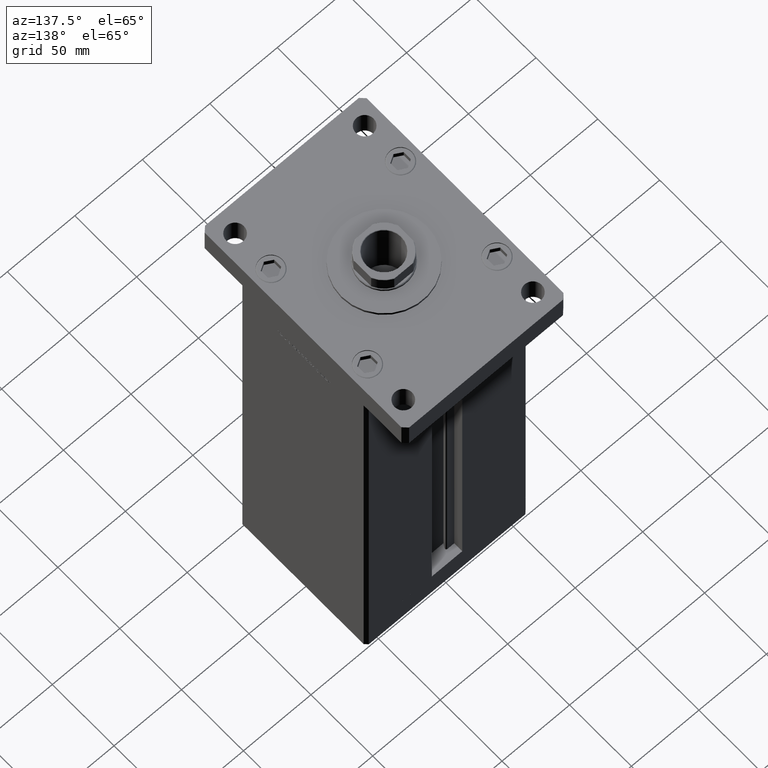
[diagram: clean part render]
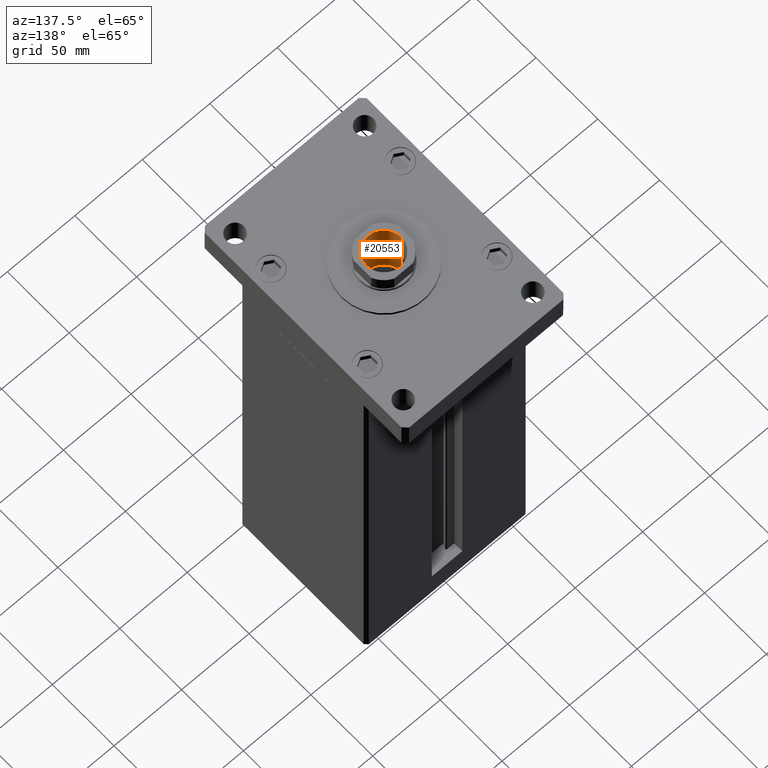
[diagram: same view with one face highlighted and labeled with its STEP entity id]
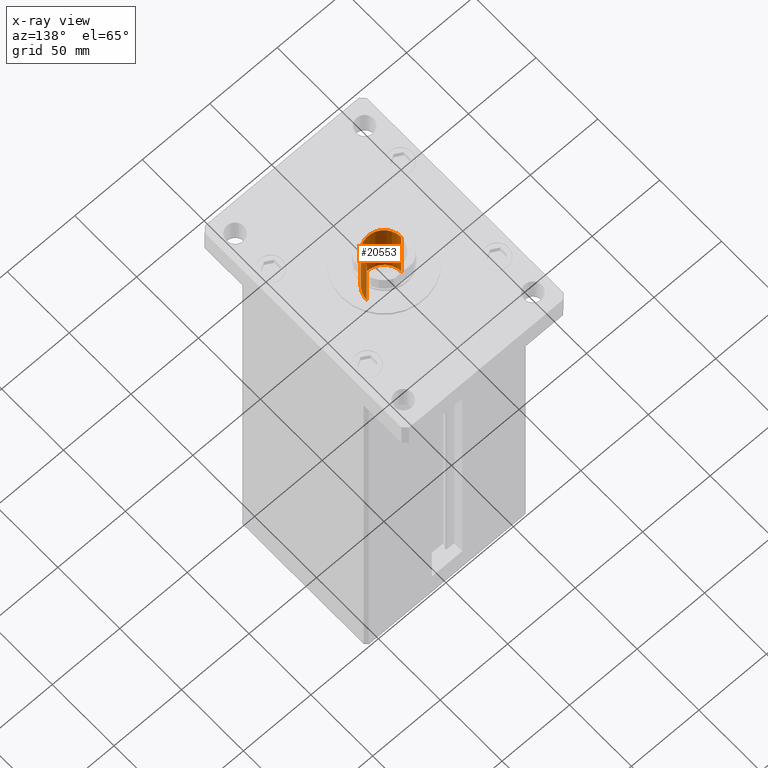
[diagram: x-ray of the same camera — body ghosted, the highlighted face saturated]
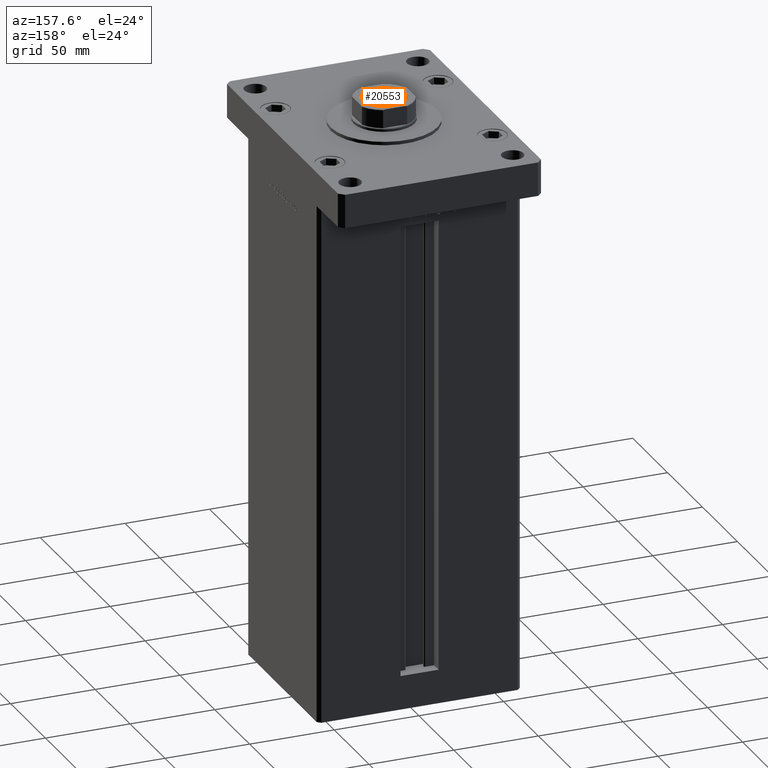
[diagram: same view with one face highlighted and labeled with its STEP entity id]
A machine part, auxiliary view. The second image highlights one B-rep face of the part: STEP entity #20553.
The next image is the same camera in x-ray: the body ghosted, the highlighted face saturated — about 1% of this face is hidden behind the body in this view.
A second angle (auxiliary view) of the same face is appended — the face is thin or edge-on in the first view.
In plain terms, the highlighted cylindrical surface (edge-blend (fillet) strip) has radius 12.75 mm, axis along (0, 0, 1).
Its self-contained STEP definition (entity closure, byte-faithful):
#4655 = CARTESIAN_POINT ( 'NONE',  ( 12.74999999999999467, 0.000000000000000000, 309.2500000000000000 ) ) ;
#5448 = CARTESIAN_POINT ( 'NONE',  ( -12.74999999999999467, 1.561424668912874519E-15, 309.2500000000000000 ) ) ;
#5985 = LINE ( 'NONE', #5448, #52320 ) ;
#7150 = EDGE_CURVE ( 'NONE', #29939, #24408, #29130, .T. ) ;
#7215 = EDGE_CURVE ( 'NONE', #11705, #37923, #5985, .T. ) ;
#7250 = DIRECTION ( 'NONE',  ( 1.000000000000000000, 0.000000000000000000, 0.000000000000000000 ) ) ;
#7376 = CIRCLE ( 'NONE', #37771, 12.74999999999999112 ) ;
#7489 = AXIS2_PLACEMENT_3D ( 'NONE', #34974, #39324, #42340 ) ;
#8436 = CARTESIAN_POINT ( 'NONE',  ( -12.74999999999999467, 1.561424668912874519E-15, 308.9499999999999318 ) ) ;
#11053 = CARTESIAN_POINT ( 'NONE',  ( 0.000000000000000000, 0.000000000000000000, 264.2500000000000568 ) ) ;
#11323 = CARTESIAN_POINT ( 'NONE',  ( 12.74999999999999112, 0.000000000000000000, 264.2500000000000568 ) ) ;
#11642 = EDGE_LOOP ( 'NONE', ( #52927, #48584, #12348, #26995 ) ) ;
#11705 = VERTEX_POINT ( 'NONE', #17397 ) ;
#12348 = ORIENTED_EDGE ( 'NONE', *, *, #17037, .T. ) ;
#14857 = DIRECTION ( 'NONE',  ( 1.000000000000000000, 0.000000000000000000, 0.000000000000000000 ) ) ;
#17037 = EDGE_CURVE ( 'NONE', #37923, #24408, #43872, .T. ) ;
#17397 = CARTESIAN_POINT ( 'NONE',  ( -12.74999999999999112, 1.561424668912874125E-15, 264.2500000000000568 ) ) ;
#20553 = ADVANCED_FACE ( 'NONE', ( #22190 ), #26793, .F. ) ;
#22190 = FACE_OUTER_BOUND ( 'NONE', #11642, .T. ) ;
#24408 = VERTEX_POINT ( 'NONE', #47576 ) ;
#26793 = CYLINDRICAL_SURFACE ( 'NONE', #7489, 12.74999999999999467 ) ;
#26995 = ORIENTED_EDGE ( 'NONE', *, *, #7150, .F. ) ;
#29130 = LINE ( 'NONE', #4655, #42692 ) ;
#29939 = VERTEX_POINT ( 'NONE', #11323 ) ;
#30180 = DIRECTION ( 'NONE',  ( -0.000000000000000000, -0.000000000000000000, 1.000000000000000000 ) ) ;
#33738 = DIRECTION ( 'NONE',  ( -0.000000000000000000, -0.000000000000000000, 1.000000000000000000 ) ) ;
#34974 = CARTESIAN_POINT ( 'NONE',  ( 0.000000000000000000, 0.000000000000000000, 309.2500000000000000 ) ) ;
#37771 = AXIS2_PLACEMENT_3D ( 'NONE', #11053, #44258, #7250 ) ;
#37923 = VERTEX_POINT ( 'NONE', #8436 ) ;
#39324 = DIRECTION ( 'NONE',  ( -0.000000000000000000, -0.000000000000000000, 1.000000000000000000 ) ) ;
#40163 = CARTESIAN_POINT ( 'NONE',  ( 0.000000000000000000, 0.000000000000000000, 308.9499999999999318 ) ) ;
#42340 = DIRECTION ( 'NONE',  ( 1.000000000000000000, 0.000000000000000000, 0.000000000000000000 ) ) ;
#42692 = VECTOR ( 'NONE', #33738, 1000.000000000000000 ) ;
#43872 = CIRCLE ( 'NONE', #50846, 12.74999999999999467 ) ;
#44258 = DIRECTION ( 'NONE',  ( -0.000000000000000000, -0.000000000000000000, 1.000000000000000000 ) ) ;
#47576 = CARTESIAN_POINT ( 'NONE',  ( 12.74999999999999467, 0.000000000000000000, 308.9499999999999318 ) ) ;
#48584 = ORIENTED_EDGE ( 'NONE', *, *, #7215, .T. ) ;
#50190 = EDGE_CURVE ( 'NONE', #11705, #29939, #7376, .T. ) ;
#50846 = AXIS2_PLACEMENT_3D ( 'NONE', #40163, #52431, #14857 ) ;
#52320 = VECTOR ( 'NONE', #30180, 1000.000000000000000 ) ;
#52431 = DIRECTION ( 'NONE',  ( 0.000000000000000000, 0.000000000000000000, 1.000000000000000000 ) ) ;
#52927 = ORIENTED_EDGE ( 'NONE', *, *, #50190, .F. ) ;